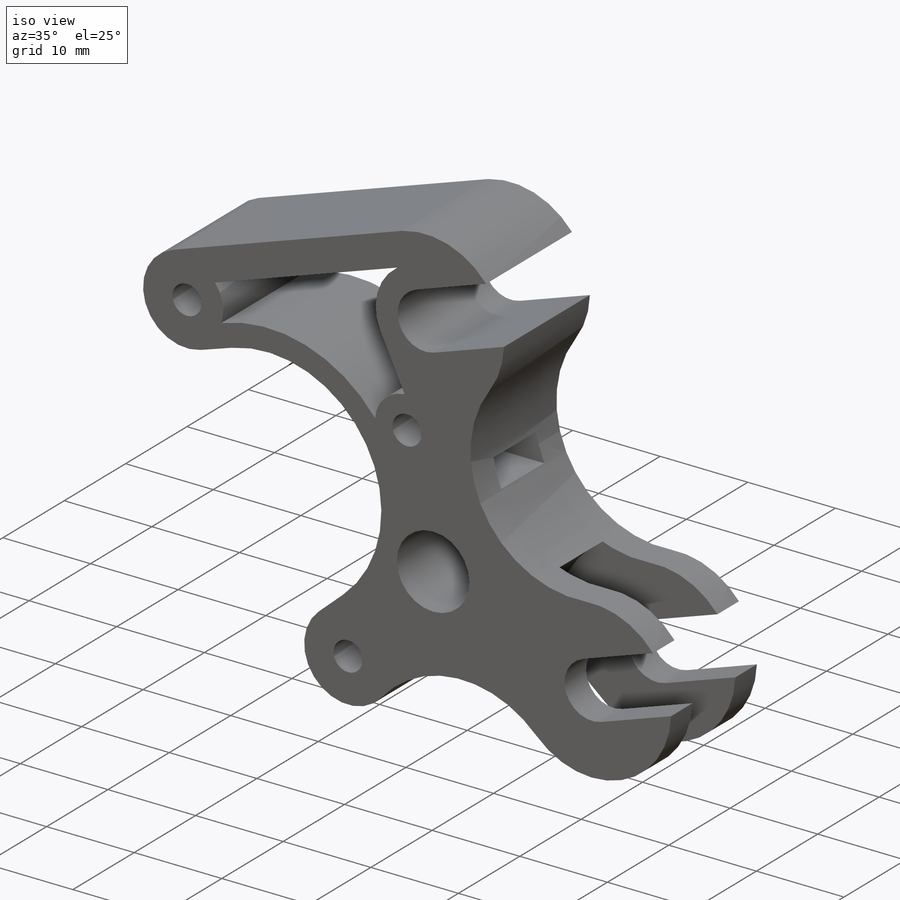
[diagram: iso view]
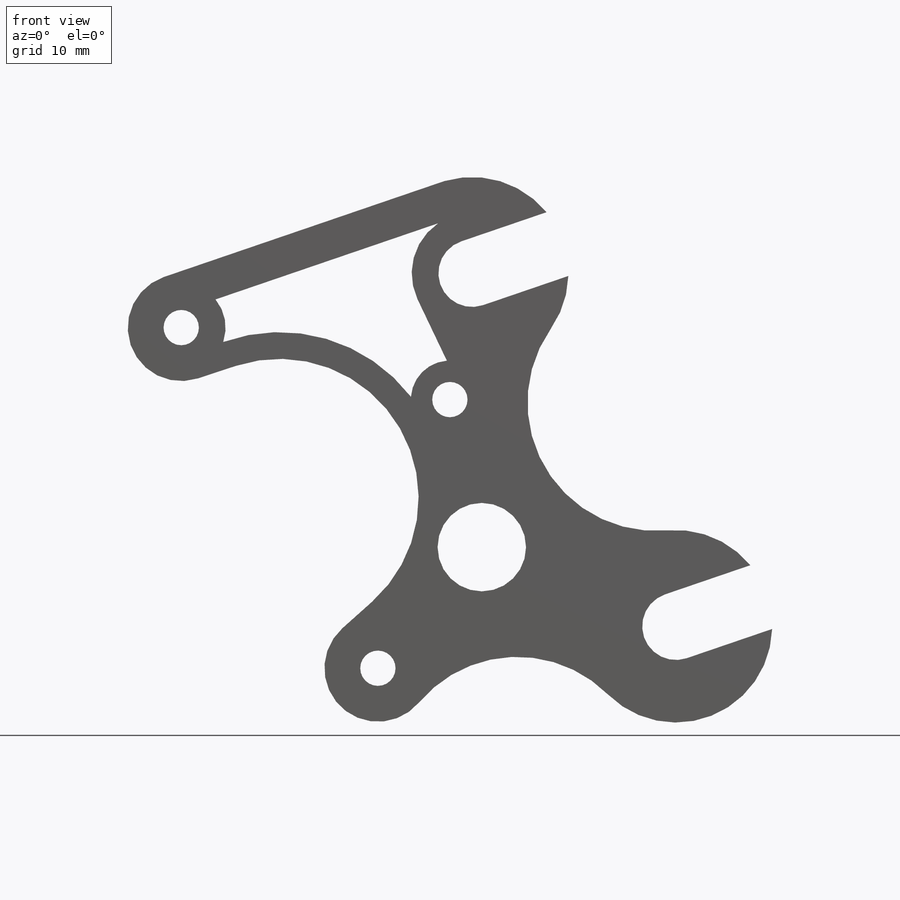
[diagram: front view]
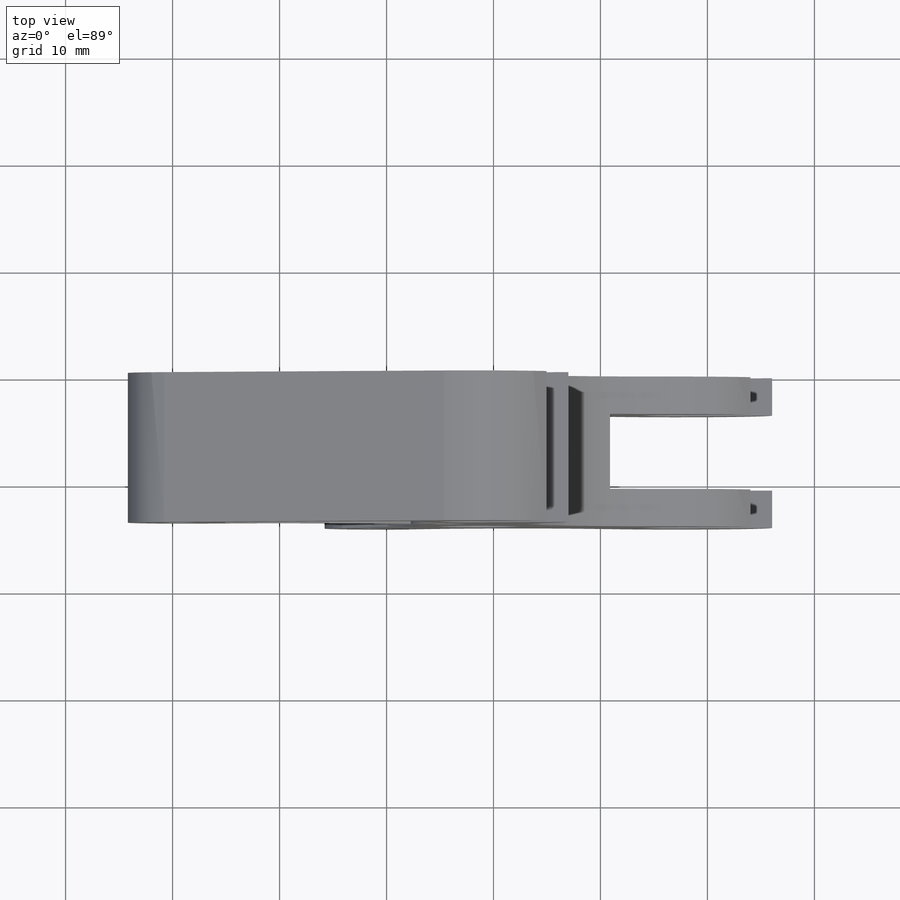
[diagram: top view]
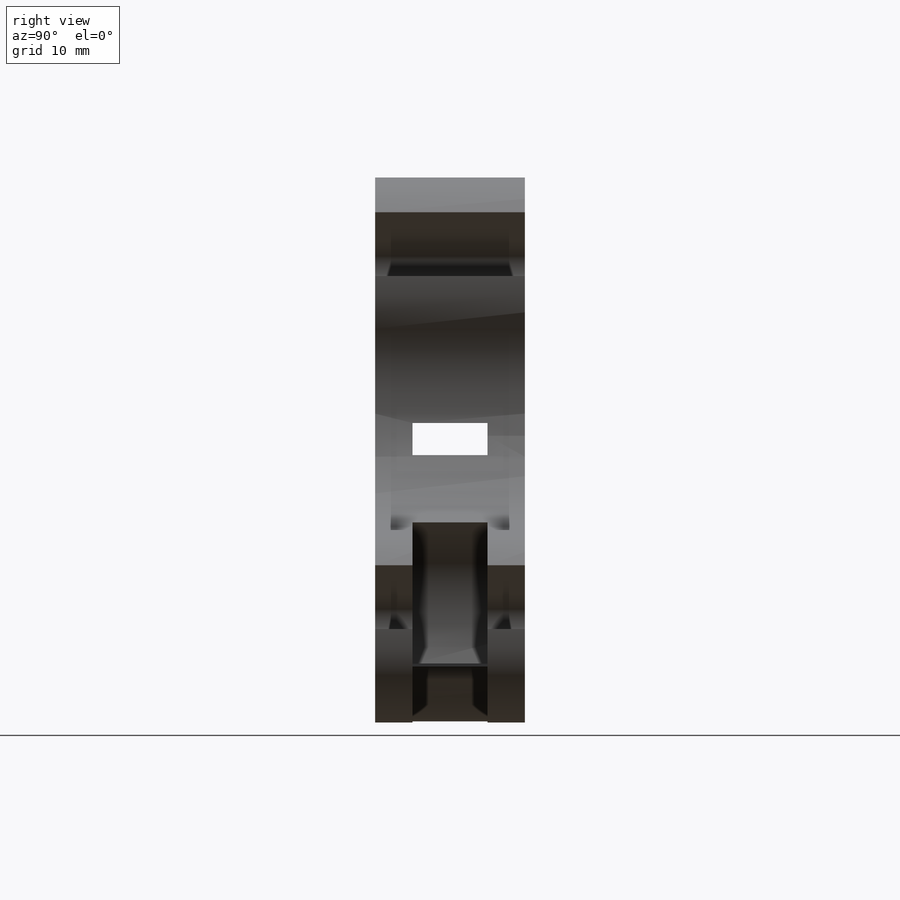
[diagram: right view]
SOLIDWORKS PART (.sldprt)
format: sldprt  version: not decoded by parser v0  size: 268,800 bytes
history: native  units: mm
features: sketch x3, cut_extrude x2, material x1, plane x1, extrude x1 (+16 scaffold rows collapsed)
feature tree (24):
  scaffold x16  (default folders/planes/origin — collapsed)
  material  "Material <not specified>"
  plane  "Plane1"  Offset=7mm
  sketch  "Sketch1"  dims[c1.D1=26.0mm c1.D2=3.3mm c1.D3=6.3mm c2.D2=3.3mm c2.D9=5.0mm c2.D10=9.0mm c2.D11=12.0mm c2.D12=12.0mm c2.D4=21.0mm c2.D5=38.105mm c2.D6=~35.196689mm c3.D6=60.0deg c3.D7=18.0mm c3.D8=26.0mm c4.D8=15.0deg]
  extrude  "Boss-Extrude1"  Depth=14mm
  sketch  "Sketch3"  dims[c1.D1=19.0mm c1.D2=~30.638454mm c1.D3=10.0mm c1.D4=~15.65736mm c2.D2=2.0mm c2.D4=2.0mm c2.D5=3.0mm c2.D6=3.0mm]
  cut_extrude  "Cut-Extrude1"  Depth=3.5mm
  sketch  "Sketch4"  dims[c1.D1=5.397mm c1.D2=~15.655432mm c1.D3=~3.213941mm c1.D4=5.1131mm c2.D1=2.5mm c2.D2=2.5mm c2.D3=2.0mm c2.D4=2.5mm c2.D5=~22.012936mm c3.D5=~178.983027deg c4.D5=3.0mm]
  cut_extrude  "Cut-Extrude2"  Depth=2mm
decode coverage: 6 of 6 modeling features carry decoded parameters
note: ~ marks probable driven/reference dimensions
note: suppression state not decoded; provenance and decode notes live in map.json
